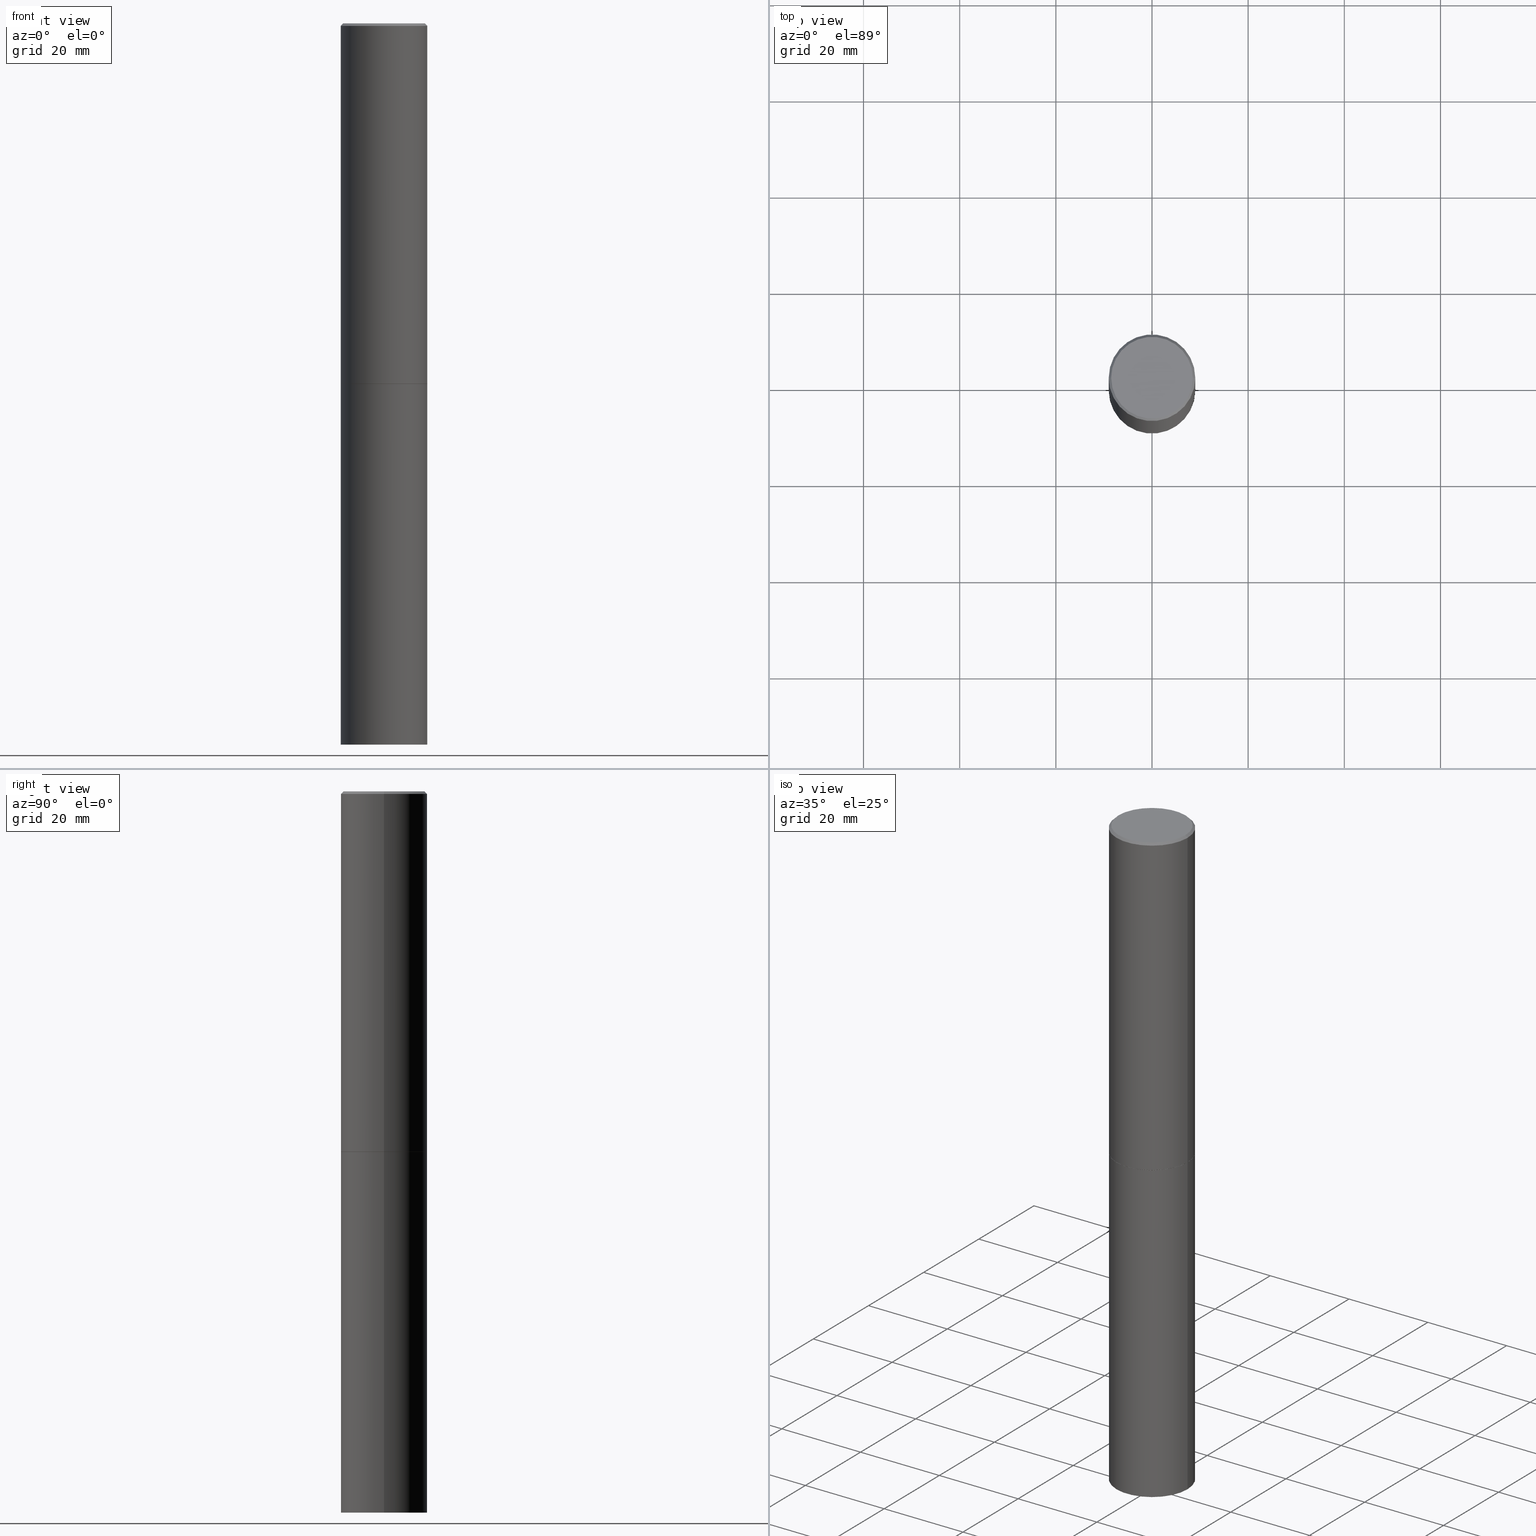
[diagram: canonical four-view strip — front | top / right | iso, engineering-drawing reading convention]
A machine part, canonical four-view strip (front | top / right | iso — engineering-drawing reading convention). The complete STEP part file that produces these views, byte-faithful:
ISO-10303-21;
HEADER;
FILE_DESCRIPTION (( 'STEP AP203' ),
    '1' );
FILE_NAME ('43175.STEP',
    '2024-02-28T04:11:20',
    ( '' ),
    ( '' ),
    'SwSTEP 2.0',
    'SolidWorks 2023',
    '' );
FILE_SCHEMA (( 'CONFIG_CONTROL_DESIGN' ));
ENDSEC;

DATA;
#1 = DIRECTION ( 'NONE',  ( -2.445468806185136597E-29, 3.491481338843145583E-15, 1.000000000000000000 ) ) ;
#2 = ADVANCED_FACE ( 'NONE', ( #82 ), #120, .T. ) ;
#3 = EDGE_LOOP ( 'NONE', ( #261, #243, #169, #320 ) ) ;
#4 = CC_DESIGN_APPROVAL ( #109, ( #158 ) ) ;
#5 = CARTESIAN_POINT ( 'NONE',  ( 0.3543499999999996652, -2.500847092287203323E-15, -0.02000000000000008021 ) ) ;
#6 = FACE_OUTER_BOUND ( 'NONE', #159, .T. ) ;
#7 = VERTEX_POINT ( 'NONE', #331 ) ;
#8 = DIRECTION ( 'NONE',  ( 1.000000000000000000, -6.982962677686267499E-15, 0.000000000000000000 ) ) ;
#9 = ADVANCED_FACE ( 'NONE', ( #80 ), #299, .T. ) ;
#10 = CARTESIAN_POINT ( 'NONE',  ( 0.3543499999999999983, -2.474412824838128694E-15, 1.727873240503289749E-29 ) ) ;
#11 = APPROVAL ( #171, 'UNSPECIFIED' ) ;
#12 = CC_DESIGN_APPROVAL ( #161, ( #136 ) ) ;
#13 = LINE ( 'NONE', #68, #166 ) ;
#14 = VERTEX_POINT ( 'NONE', #306 ) ;
#15 = ORIENTED_EDGE ( 'NONE', *, *, #319, .T. ) ;
#16 = DIRECTION ( 'NONE',  ( -2.445468806185136597E-29, 3.491481338843145583E-15, 1.000000000000000000 ) ) ;
#17 =( NAMED_UNIT ( * ) PLANE_ANGLE_UNIT ( ) SI_UNIT ( $, .RADIAN. ) );
#18 = ORIENTED_EDGE ( 'NONE', *, *, #172, .T. ) ;
#19 = APPROVAL_ROLE ( '' ) ;
#20 = CARTESIAN_POINT ( 'NONE',  ( -0.3543499999999999983, -1.294631181370425968E-14, -5.905499999999999972 ) ) ;
#21 = CC_DESIGN_DATE_AND_TIME_ASSIGNMENT ( #95, #311, ( #158 ) ) ;
#22 = CARTESIAN_POINT ( 'NONE',  ( 2.474412824838272661E-15, 0.3543499999999794037, -5.905500000000000860 ) ) ;
#23 = DIRECTION ( 'NONE',  ( 1.000000000000000000, -6.982962677686265922E-15, 4.876176775795935793E-29 ) ) ;
#24 = PERSON_AND_ORGANIZATION ( #253, #359 ) ;
#25 = CC_DESIGN_PERSON_AND_ORGANIZATION_ASSIGNMENT ( #227, #283, ( #136 ) ) ;
#26 = FACE_OUTER_BOUND ( 'NONE', #130, .T. ) ;
#27 = AXIS2_PLACEMENT_3D ( 'NONE', #98, #90, #198 ) ;
#28 = COORDINATED_UNIVERSAL_TIME_OFFSET ( 5, 0, .BEHIND. ) ;
#29 = ADVANCED_FACE ( 'NONE', ( #247 ), #51, .T. ) ;
#30 = PERSON_AND_ORGANIZATION ( #253, #359 ) ;
#31 = AXIS2_PLACEMENT_3D ( 'NONE', #237, #297, #323 ) ;
#32 = DIRECTION ( 'NONE',  ( -2.445468806185136597E-29, 3.491481338843145583E-15, 1.000000000000000000 ) ) ;
#33 = ORIENTED_EDGE ( 'NONE', *, *, #338, .F. ) ;
#34 = COORDINATED_UNIVERSAL_TIME_OFFSET ( 5, 0, .BEHIND. ) ;
#35 = EDGE_LOOP ( 'NONE', ( #33, #150, #193, #205 ) ) ;
#36 = LINE ( 'NONE', #5, #70 ) ;
#37 = DIRECTION ( 'NONE',  ( 1.000000000000000000, -6.982962677686266711E-15, 0.000000000000000000 ) ) ;
#38 = CC_DESIGN_PERSON_AND_ORGANIZATION_ASSIGNMENT ( #251, #216, ( #158 ) ) ;
#39 = DIRECTION ( 'NONE',  ( 1.000000000000000000, -6.982962677686267499E-15, 0.000000000000000000 ) ) ;
#40 = ORIENTED_EDGE ( 'NONE', *, *, #284, .F. ) ;
#41 = CC_DESIGN_PERSON_AND_ORGANIZATION_ASSIGNMENT ( #176, #287, ( #275 ) ) ;
#42 = APPROVAL_DATE_TIME ( #97, #11 ) ;
#43 = CARTESIAN_POINT ( 'NONE',  ( 7.220735744022853640E-29, -1.030929694920215659E-14, -2.952700000000000546 ) ) ;
#44 = ORIENTED_EDGE ( 'NONE', *, *, #172, .F. ) ;
#45 = VECTOR ( 'NONE', #252, 39.37007874015748143 ) ;
#46 = APPROVAL_PERSON_ORGANIZATION ( #258, #11, #282 ) ;
#47 = FACE_OUTER_BOUND ( 'NONE', #132, .T. ) ;
#48 = VERTEX_POINT ( 'NONE', #271 ) ;
#49 = DIRECTION ( 'NONE',  ( 2.445468806185136597E-29, -3.491481338843145583E-15, -1.000000000000000000 ) ) ;
#50 = EDGE_LOOP ( 'NONE', ( #72, #350 ) ) ;
#51 = CONICAL_SURFACE ( 'NONE', #160, 0.3543499999999996652, 0.7853981633974459475 ) ;
#52 = APPLICATION_PROTOCOL_DEFINITION ( 'international standard', 'config_control_design', 1994, #276 ) ;
#53 = DIRECTION ( 'NONE',  ( -2.445468806185136597E-29, 3.491481338843145583E-15, 1.000000000000000000 ) ) ;
#54 = EDGE_CURVE ( 'NONE', #295, #341, #83, .T. ) ;
#55 = DIRECTION ( 'NONE',  ( 2.438088387897960049E-29, -3.491481338843145188E-15, -1.000000000000000000 ) ) ;
#56 = LINE ( 'NONE', #170, #153 ) ;
#57 = PRODUCT_RELATED_PRODUCT_CATEGORY ( 'detail', '', ( #229 ) ) ;
#58 = MECHANICAL_CONTEXT ( 'NONE', #259, 'mechanical' ) ;
#59 = CIRCLE ( 'NONE', #31, 0.3543499999999999983 ) ;
#60 = FACE_OUTER_BOUND ( 'NONE', #149, .T. ) ;
#61 = CC_DESIGN_PERSON_AND_ORGANIZATION_ASSIGNMENT ( #30, #340, ( #136 ) ) ;
#62 = CARTESIAN_POINT ( 'NONE',  ( 0.000000000000000000, 0.000000000000000000, 0.000000000000000000 ) ) ;
#63 = SECURITY_CLASSIFICATION_LEVEL ( 'unclassified' ) ;
#64 = CARTESIAN_POINT ( 'NONE',  ( 2.334753571284400520E-15, 0.3343499999999996475, -1.165242529397154385E-15 ) ) ;
#65 = ORIENTED_EDGE ( 'NONE', *, *, #362, .T. ) ;
#66 = PLANE ( 'NONE',  #174 ) ;
#67 = EDGE_CURVE ( 'NONE', #14, #349, #203, .T. ) ;
#68 = CARTESIAN_POINT ( 'NONE',  ( 0.3543499999999998873, -2.474412824838127905E-15, 1.727873240503289188E-29 ) ) ;
#69 = VERTEX_POINT ( 'NONE', #20 ) ;
#70 = VECTOR ( 'NONE', #124, 39.37007874015748143 ) ;
#71 = CARTESIAN_POINT ( 'NONE',  ( 4.890937612370293302E-31, -6.982962677686318726E-17, -0.02000000000000008021 ) ) ;
#72 = ORIENTED_EDGE ( 'NONE', *, *, #219, .F. ) ;
#73 = DIRECTION ( 'NONE',  ( 1.000000000000000000, -6.982962677686266711E-15, 4.876176775795935793E-29 ) ) ;
#74 = ORIENTED_EDGE ( 'NONE', *, *, #265, .T. ) ;
#75 = EDGE_CURVE ( 'NONE', #349, #288, #108, .T. ) ;
#76 = VECTOR ( 'NONE', #196, 39.37007874015748143 ) ;
#77 = AXIS2_PLACEMENT_3D ( 'NONE', #358, #116, #343 ) ;
#78 = CARTESIAN_POINT ( 'NONE',  ( 0.3533499999999999974, -1.277672681136259888E-14, -2.952700000000000546 ) ) ;
#79 = VERTEX_POINT ( 'NONE', #354 ) ;
#80 = FACE_OUTER_BOUND ( 'NONE', #215, .T. ) ;
#81 = EDGE_CURVE ( 'NONE', #295, #104, #220, .T. ) ;
#82 = FACE_OUTER_BOUND ( 'NONE', #186, .T. ) ;
#83 = CIRCLE ( 'NONE', #274, 0.3343499999999996475 ) ;
#84 = CALENDAR_DATE ( 2024, 27, 2 ) ;
#85 = AXIS2_PLACEMENT_3D ( 'NONE', #168, #334, #249 ) ;
#86 = CARTESIAN_POINT ( 'NONE',  ( -0.3543499999999999983, 2.517808184165914997E-15, -1.743024649231826066E-29 ) ) ;
#87 = CC_DESIGN_DATE_AND_TIME_ASSIGNMENT ( #262, #89, ( #275 ) ) ;
#88 = CARTESIAN_POINT ( 'NONE',  ( 0.000000000000000000, 0.000000000000000000, 0.000000000000000000 ) ) ;
#89 = DATE_TIME_ROLE ( 'classification_date' ) ;
#90 = DIRECTION ( 'NONE',  ( -2.445468806185136597E-29, 3.491481338843145583E-15, 1.000000000000000000 ) ) ;
#91 = ADVANCED_FACE ( 'NONE', ( #268 ), #225, .F. ) ;
#92 = DESIGN_CONTEXT ( 'detailed design', #276, 'design' ) ;
#93 = CONICAL_SURFACE ( 'NONE', #291, 0.3533499999999999974, 0.7853981633972775267 ) ;
#94 = FACE_OUTER_BOUND ( 'NONE', #183, .T. ) ;
#95 = DATE_AND_TIME ( #328, #154 ) ;
#96 =( GEOMETRIC_REPRESENTATION_CONTEXT ( 3 ) GLOBAL_UNCERTAINTY_ASSIGNED_CONTEXT ( ( #117 ) ) GLOBAL_UNIT_ASSIGNED_CONTEXT ( ( #114, #17, #137 ) ) REPRESENTATION_CONTEXT ( 'NONE', 'WORKASPACE' ) );
#97 = DATE_AND_TIME ( #143, #167 ) ;
#98 = CARTESIAN_POINT ( 'NONE',  ( 7.220735744022852519E-29, -1.030929694920215502E-14, -2.952700000000000102 ) ) ;
#99 = ADVANCED_FACE ( 'NONE', ( #361 ), #312, .F. ) ;
#100 = CARTESIAN_POINT ( 'NONE',  ( -0.3343499999999996475, 2.369668384672832169E-15, 4.268512490083961526E-18 ) ) ;
#101 = CIRCLE ( 'NONE', #307, 0.3543499999999996652 ) ;
#102 = ORIENTED_EDGE ( 'NONE', *, *, #362, .F. ) ;
#103 = DIRECTION ( 'NONE',  ( -2.445468806185136597E-29, 3.491481338843145583E-15, 1.000000000000000000 ) ) ;
#104 = VERTEX_POINT ( 'NONE', #151 ) ;
#105 = CARTESIAN_POINT ( 'NONE',  ( 7.220735744022853640E-29, -1.030929694920215659E-14, -2.952700000000000546 ) ) ;
#106 = AXIS2_PLACEMENT_3D ( 'NONE', #335, #280, #23 ) ;
#107 =( LENGTH_UNIT ( ) NAMED_UNIT ( * ) SI_UNIT ( $, .METRE. ) );
#108 = LINE ( 'NONE', #140, #45 ) ;
#109 = APPROVAL ( #277, 'UNSPECIFIED' ) ;
#110 = DIRECTION ( 'NONE',  ( 1.000000000000000000, 0.000000000000000000, 0.000000000000000000 ) ) ;
#111 = DIRECTION ( 'NONE',  ( -1.000000000000000000, 6.982962677686266711E-15, 0.000000000000000000 ) ) ;
#112 = DIRECTION ( 'NONE',  ( -0.7071067811865459074, 2.468850131082239706E-15, -0.7071067811865492381 ) ) ;
#113 = CLOSED_SHELL ( 'NONE', ( #2, #9, #29, #296, #224, #245, #91, #99 ) ) ;
#114 =( CONVERSION_BASED_UNIT ( 'INCH', #190 ) LENGTH_UNIT ( ) NAMED_UNIT ( #180 ) );
#115 = AXIS2_PLACEMENT_3D ( 'NONE', #141, #352, #254 ) ;
#116 = DIRECTION ( 'NONE',  ( -2.445468806185136597E-29, 3.491481338843145583E-15, 1.000000000000000000 ) ) ;
#117 = UNCERTAINTY_MEASURE_WITH_UNIT (LENGTH_MEASURE( 1.000000000000000082E-05 ), #114, 'distance_accuracy_value', 'NONE');
#118 = CARTESIAN_POINT ( 'NONE',  ( 7.220735744022852519E-29, -1.030929694920215502E-14, -2.952700000000000102 ) ) ;
#119 = ADVANCED_FACE ( 'NONE', ( #26 ), #197, .T. ) ;
#120 = CONICAL_SURFACE ( 'NONE', #147, 0.3533499999999999974, 0.7853981633972775267 ) ;
#121 = LOCAL_TIME ( 23, 11, 20.00000000000000000, #122 ) ;
#122 = COORDINATED_UNIVERSAL_TIME_OFFSET ( 5, 0, .BEHIND. ) ;
#123 = ADVANCED_BREP_SHAPE_REPRESENTATION ( '43175', ( #269, #144, #182 ), #96 ) ;
#124 = DIRECTION ( 'NONE',  ( 0.7071067811865459074, -7.319954787623251312E-15, -0.7071067811865492381 ) ) ;
#125 = ORIENTED_EDGE ( 'NONE', *, *, #142, .T. ) ;
#126 = EDGE_CURVE ( 'NONE', #48, #79, #226, .T. ) ;
#127 = FACE_OUTER_BOUND ( 'NONE', #3, .T. ) ;
#128 = DIRECTION ( 'NONE',  ( -2.445468806185136877E-29, 3.491481338843145188E-15, 1.000000000000000000 ) ) ;
#129 = AXIS2_PLACEMENT_3D ( 'NONE', #43, #293, #39 ) ;
#130 = EDGE_LOOP ( 'NONE', ( #44, #125, #15, #188 ) ) ;
#131 = CARTESIAN_POINT ( 'NONE',  ( 4.890937612370293302E-31, -6.982962677686318726E-17, -0.02000000000000008021 ) ) ;
#132 = EDGE_LOOP ( 'NONE', ( #329, #366, #74, #222 ) ) ;
#133 = ORIENTED_EDGE ( 'NONE', *, *, #310, .F. ) ;
#134 = EDGE_CURVE ( 'NONE', #79, #48, #189, .T. ) ;
#135 = CIRCLE ( 'NONE', #339, 0.3543499999999999983 ) ;
#136 = PRODUCT_DEFINITION_FORMATION_WITH_SPECIFIED_SOURCE ( 'ANY', '', #229, .NOT_KNOWN. ) ;
#137 =( NAMED_UNIT ( * ) SI_UNIT ( $, .STERADIAN. ) SOLID_ANGLE_UNIT ( ) );
#138 = CARTESIAN_POINT ( 'NONE',  ( 0.000000000000000000, 0.000000000000000000, 0.000000000000000000 ) ) ;
#139 = DATE_AND_TIME ( #84, #292 ) ;
#140 = CARTESIAN_POINT ( 'NONE',  ( 0.3533499999999999974, -1.277672681136259888E-14, -2.952700000000000546 ) ) ;
#141 = CARTESIAN_POINT ( 'NONE',  ( 7.218290275216666916E-29, -1.030580546786331359E-14, -2.951700000000000212 ) ) ;
#142 = EDGE_CURVE ( 'NONE', #69, #191, #218, .T. ) ;
#143 = CALENDAR_DATE ( 2024, 27, 2 ) ;
#144 = MANIFOLD_SOLID_BREP ( 'Body-Move/Copy2[2]', #113 ) ;
#145 = ADVANCED_FACE ( 'NONE', ( #60 ), #206, .F. ) ;
#146 = CALENDAR_DATE ( 2024, 27, 2 ) ;
#147 = AXIS2_PLACEMENT_3D ( 'NONE', #105, #327, #194 ) ;
#148 = APPROVAL_STATUS ( 'not_yet_approved' ) ;
#149 = EDGE_LOOP ( 'NONE', ( #235, #317 ) ) ;
#150 = ORIENTED_EDGE ( 'NONE', *, *, #152, .T. ) ;
#151 = CARTESIAN_POINT ( 'NONE',  ( -0.3543499999999996652, 2.404583198061263029E-15, -0.02000000000000008021 ) ) ;
#152 = EDGE_CURVE ( 'NONE', #341, #242, #36, .T. ) ;
#153 = VECTOR ( 'NONE', #257, 39.37007874015748143 ) ;
#154 = LOCAL_TIME ( 23, 11, 20.00000000000000000, #308 ) ;
#155 = CARTESIAN_POINT ( 'NONE',  ( 0.3543499999999996652, -2.500847092287203323E-15, -0.02000000000000008021 ) ) ;
#156 = LINE ( 'NONE', #10, #336 ) ;
#157 = ORIENTED_EDGE ( 'NONE', *, *, #54, .T. ) ;
#158 = PRODUCT_DEFINITION ( 'UNKNOWN', '', #136, #92 ) ;
#159 = EDGE_LOOP ( 'NONE', ( #102, #232, #207, #40 ) ) ;
#160 = AXIS2_PLACEMENT_3D ( 'NONE', #246, #49, #111 ) ;
#161 = APPROVAL ( #148, 'UNSPECIFIED' ) ;
#162 = ORIENTED_EDGE ( 'NONE', *, *, #303, .F. ) ;
#163 = CARTESIAN_POINT ( 'NONE',  ( 7.220735744022853640E-29, -1.030929694920215659E-14, -2.952700000000000546 ) ) ;
#164 = DIRECTION ( 'NONE',  ( -1.000000000000000000, 6.982962677686265922E-15, -4.876176775795935793E-29 ) ) ;
#165 = ORIENTED_EDGE ( 'NONE', *, *, #134, .F. ) ;
#166 = VECTOR ( 'NONE', #294, 39.37007874015748143 ) ;
#167 = LOCAL_TIME ( 23, 11, 20.00000000000000000, #28 ) ;
#168 = CARTESIAN_POINT ( 'NONE',  ( 4.890937612370293302E-31, -6.982962677686318726E-17, -0.02000000000000008021 ) ) ;
#169 = ORIENTED_EDGE ( 'NONE', *, *, #81, .T. ) ;
#170 = CARTESIAN_POINT ( 'NONE',  ( -0.3543499999999998873, 2.517808184165914208E-15, -1.743024649231825225E-29 ) ) ;
#171 = APPROVAL_STATUS ( 'not_yet_approved' ) ;
#172 = EDGE_CURVE ( 'NONE', #69, #48, #236, .T. ) ;
#173 = APPROVAL_ROLE ( '' ) ;
#174 = AXIS2_PLACEMENT_3D ( 'NONE', #22, #55, #164 ) ;
#175 = CC_DESIGN_APPROVAL ( #11, ( #275 ) ) ;
#176 = PERSON_AND_ORGANIZATION ( #253, #359 ) ;
#177 = EDGE_CURVE ( 'NONE', #7, #104, #56, .T. ) ;
#178 = SHAPE_DEFINITION_REPRESENTATION ( #363, #123 ) ;
#179 = CARTESIAN_POINT ( 'NONE',  ( 7.218290275216666916E-29, -1.030580546786331359E-14, -2.951700000000000212 ) ) ;
#180 = DIMENSIONAL_EXPONENTS ( 1.000000000000000000, 0.000000000000000000, 0.000000000000000000, 0.000000000000000000, 0.000000000000000000, 0.000000000000000000, 0.000000000000000000 ) ;
#181 = CLOSED_SHELL ( 'NONE', ( #200, #330, #145, #119 ) ) ;
#182 = AXIS2_PLACEMENT_3D ( 'NONE', #88, #300, #110 ) ;
#183 = EDGE_LOOP ( 'NONE', ( #346, #18, #165, #185 ) ) ;
#184 = DIRECTION ( 'NONE',  ( -2.445468806185136597E-29, 3.491481338843145583E-15, 1.000000000000000000 ) ) ;
#185 = ORIENTED_EDGE ( 'NONE', *, *, #319, .F. ) ;
#186 = EDGE_LOOP ( 'NONE', ( #324, #65, #273, #217 ) ) ;
#187 = DIRECTION ( 'NONE',  ( -1.000000000000000000, 6.982962677686266711E-15, 0.000000000000000000 ) ) ;
#188 = ORIENTED_EDGE ( 'NONE', *, *, #126, .F. ) ;
#189 = CIRCLE ( 'NONE', #27, 0.3543499999999999983 ) ;
#190 = LENGTH_MEASURE_WITH_UNIT ( LENGTH_MEASURE( 0.02539999999999999897 ), #107 );
#191 = VERTEX_POINT ( 'NONE', #221 ) ;
#192 = DIRECTION ( 'NONE',  ( 1.000000000000000000, -6.982962677686266711E-15, 4.876061227832602160E-29 ) ) ;
#193 = ORIENTED_EDGE ( 'NONE', *, *, #303, .T. ) ;
#194 = DIRECTION ( 'NONE',  ( 1.000000000000000000, -6.982962677686267499E-15, 0.000000000000000000 ) ) ;
#195 = AXIS2_PLACEMENT_3D ( 'NONE', #118, #255, #228 ) ;
#196 = DIRECTION ( 'NONE',  ( -2.445468806185136877E-29, 3.491481338843145188E-15, 1.000000000000000000 ) ) ;
#197 = CYLINDRICAL_SURFACE ( 'NONE', #313, 0.3543499999999999983 ) ;
#198 = DIRECTION ( 'NONE',  ( 1.000000000000000000, -6.982962677686265922E-15, 0.000000000000000000 ) ) ;
#199 = AXIS2_PLACEMENT_3D ( 'NONE', #223, #279, #192 ) ;
#200 = ADVANCED_FACE ( 'NONE', ( #94 ), #201, .T. ) ;
#201 = CYLINDRICAL_SURFACE ( 'NONE', #285, 0.3543499999999999983 ) ;
#202 = PERSON_AND_ORGANIZATION ( #253, #359 ) ;
#203 = CIRCLE ( 'NONE', #248, 0.3533499999999999974 ) ;
#204 = CIRCLE ( 'NONE', #199, 0.3343499999999996475 ) ;
#205 = ORIENTED_EDGE ( 'NONE', *, *, #81, .F. ) ;
#206 = PLANE ( 'NONE',  #234 ) ;
#207 = ORIENTED_EDGE ( 'NONE', *, *, #75, .T. ) ;
#208 = DIRECTION ( 'NONE',  ( 2.445468806185136597E-29, -3.491481338843145583E-15, -1.000000000000000000 ) ) ;
#209 = CONICAL_SURFACE ( 'NONE', #260, 0.3543499999999996652, 0.7853981633974459475 ) ;
#210 = CIRCLE ( 'NONE', #115, 0.3543499999999999983 ) ;
#211 = ORIENTED_EDGE ( 'NONE', *, *, #265, .F. ) ;
#212 = CYLINDRICAL_SURFACE ( 'NONE', #321, 0.3543499999999998873 ) ;
#213 = ORIENTED_EDGE ( 'NONE', *, *, #177, .T. ) ;
#214 = DIRECTION ( 'NONE',  ( 1.000000000000000000, -6.982962677686265922E-15, 0.000000000000000000 ) ) ;
#215 = EDGE_LOOP ( 'NONE', ( #238, #213, #162, #211 ) ) ;
#216 = PERSON_AND_ORGANIZATION_ROLE ( 'creator' ) ;
#217 = ORIENTED_EDGE ( 'NONE', *, *, #75, .F. ) ;
#218 = CIRCLE ( 'NONE', #77, 0.3543499999999999983 ) ;
#219 = EDGE_CURVE ( 'NONE', #191, #69, #59, .T. ) ;
#220 = LINE ( 'NONE', #357, #298 ) ;
#221 = CARTESIAN_POINT ( 'NONE',  ( 0.3543499999999999983, -2.309335587137632500E-14, -5.905499999999999972 ) ) ;
#222 = ORIENTED_EDGE ( 'NONE', *, *, #348, .F. ) ;
#223 = CARTESIAN_POINT ( 'NONE',  ( -1.043851414335219820E-46, 1.490343170380447200E-32, 4.268512490100411279E-18 ) ) ;
#224 = ADVANCED_FACE ( 'NONE', ( #47 ), #212, .T. ) ;
#225 = PLANE ( 'NONE',  #106 ) ;
#226 = CIRCLE ( 'NONE', #195, 0.3543499999999999983 ) ;
#227 = PERSON_AND_ORGANIZATION ( #253, #359 ) ;
#228 = DIRECTION ( 'NONE',  ( 1.000000000000000000, -6.982962677686265922E-15, 0.000000000000000000 ) ) ;
#229 = PRODUCT ( '43175', '43175', '', ( #58 ) ) ;
#230 = APPROVAL_DATE_TIME ( #316, #161 ) ;
#231 = DIRECTION ( 'NONE',  ( 2.438088387897960049E-29, -3.491481338843145188E-15, -1.000000000000000000 ) ) ;
#232 = ORIENTED_EDGE ( 'NONE', *, *, #67, .T. ) ;
#233 = DIRECTION ( 'NONE',  ( 1.000000000000000000, -6.982962677686266711E-15, 4.876176775795935793E-29 ) ) ;
#234 = AXIS2_PLACEMENT_3D ( 'NONE', #365, #231, #318 ) ;
#235 = ORIENTED_EDGE ( 'NONE', *, *, #134, .T. ) ;
#236 = LINE ( 'NONE', #86, #76 ) ;
#237 = CARTESIAN_POINT ( 'NONE',  ( 1.444171603492632270E-28, -2.061894304653819197E-14, -5.905499999999999972 ) ) ;
#238 = ORIENTED_EDGE ( 'NONE', *, *, #344, .T. ) ;
#239 = CC_DESIGN_PERSON_AND_ORGANIZATION_ASSIGNMENT ( #332, #305, ( #229 ) ) ;
#240 = DIRECTION ( 'NONE',  ( -2.445468806185136597E-29, 3.491481338843145583E-15, 1.000000000000000000 ) ) ;
#241 = CIRCLE ( 'NONE', #129, 0.3533499999999999974 ) ;
#242 = VERTEX_POINT ( 'NONE', #155 ) ;
#243 = ORIENTED_EDGE ( 'NONE', *, *, #54, .F. ) ;
#244 = FACE_OUTER_BOUND ( 'NONE', #50, .T. ) ;
#245 = ADVANCED_FACE ( 'NONE', ( #6 ), #93, .T. ) ;
#246 = CARTESIAN_POINT ( 'NONE',  ( 4.890937612370293302E-31, -6.982962677686318726E-17, -0.02000000000000008021 ) ) ;
#247 = FACE_OUTER_BOUND ( 'NONE', #35, .T. ) ;
#248 = AXIS2_PLACEMENT_3D ( 'NONE', #163, #16, #278 ) ;
#249 = DIRECTION ( 'NONE',  ( 1.000000000000000000, -6.982962677686266711E-15, 0.000000000000000000 ) ) ;
#250 = DIRECTION ( 'NONE',  ( -2.445468806185136597E-29, 3.491481338843145583E-15, 1.000000000000000000 ) ) ;
#251 = PERSON_AND_ORGANIZATION ( #253, #359 ) ;
#252 = DIRECTION ( 'NONE',  ( 0.7071067811864267805, -2.468850131080992517E-15, 0.7071067811866682540 ) ) ;
#253 = PERSON ( 'UNSPECIFIED', 'UNSPECIFIED', 'UNSPECIFIED', ('UNSPECIFIED'), ('UNSPECIFIED'), ('UNSPECIFIED') ) ;
#254 = DIRECTION ( 'NONE',  ( 1.000000000000000000, -6.982962677686265922E-15, 0.000000000000000000 ) ) ;
#255 = DIRECTION ( 'NONE',  ( -2.445468806185136597E-29, 3.491481338843145583E-15, 1.000000000000000000 ) ) ;
#256 = COORDINATED_UNIVERSAL_TIME_OFFSET ( 5, 0, .BEHIND. ) ;
#257 = DIRECTION ( 'NONE',  ( -2.445468806185136877E-29, 3.491481338843145188E-15, 1.000000000000000000 ) ) ;
#258 = PERSON_AND_ORGANIZATION ( #253, #359 ) ;
#259 = APPLICATION_CONTEXT ( 'configuration controlled 3d designs of mechanical parts and assemblies' ) ;
#260 = AXIS2_PLACEMENT_3D ( 'NONE', #131, #208, #187 ) ;
#261 = ORIENTED_EDGE ( 'NONE', *, *, #152, .F. ) ;
#262 = DATE_AND_TIME ( #146, #322 ) ;
#263 = CARTESIAN_POINT ( 'NONE',  ( 0.000000000000000000, 0.000000000000000000, 0.000000000000000000 ) ) ;
#264 = DIRECTION ( 'NONE',  ( 2.438088387897960049E-29, -3.491481338843145188E-15, -1.000000000000000000 ) ) ;
#265 = EDGE_CURVE ( 'NONE', #288, #242, #13, .T. ) ;
#266 = DIRECTION ( 'NONE',  ( 1.000000000000000000, -6.982962677686266711E-15, 4.876176775795935232E-29 ) ) ;
#267 = CIRCLE ( 'NONE', #85, 0.3543499999999996652 ) ;
#268 = FACE_OUTER_BOUND ( 'NONE', #301, .T. ) ;
#269 = MANIFOLD_SOLID_BREP ( 'Body-Move/Copy2[1]', #181 ) ;
#270 = EDGE_LOOP ( 'NONE', ( #157, #286 ) ) ;
#271 = CARTESIAN_POINT ( 'NONE',  ( -0.3543499999999999983, -1.294631181370425968E-14, -2.952700000000000102 ) ) ;
#272 = LINE ( 'NONE', #302, #315 ) ;
#273 = ORIENTED_EDGE ( 'NONE', *, *, #344, .F. ) ;
#274 = AXIS2_PLACEMENT_3D ( 'NONE', #333, #53, #351 ) ;
#275 = SECURITY_CLASSIFICATION ( '', '', #63 ) ;
#276 = APPLICATION_CONTEXT ( 'configuration controlled 3d designs of mechanical parts and assemblies' ) ;
#277 = APPROVAL_STATUS ( 'not_yet_approved' ) ;
#278 = DIRECTION ( 'NONE',  ( 1.000000000000000000, -6.982962677686267499E-15, 0.000000000000000000 ) ) ;
#279 = DIRECTION ( 'NONE',  ( -2.445468806185136597E-29, 3.491481338843145583E-15, 1.000000000000000000 ) ) ;
#280 = DIRECTION ( 'NONE',  ( -2.438088387897960049E-29, 3.491481338843145188E-15, 1.000000000000000000 ) ) ;
#281 = CC_DESIGN_SECURITY_CLASSIFICATION ( #275, ( #136 ) ) ;
#282 = APPROVAL_ROLE ( '' ) ;
#283 = PERSON_AND_ORGANIZATION_ROLE ( 'creator' ) ;
#284 = EDGE_CURVE ( 'NONE', #7, #288, #135, .T. ) ;
#285 = AXIS2_PLACEMENT_3D ( 'NONE', #62, #32, #73 ) ;
#286 = ORIENTED_EDGE ( 'NONE', *, *, #338, .T. ) ;
#287 = PERSON_AND_ORGANIZATION_ROLE ( 'classification_officer' ) ;
#288 = VERTEX_POINT ( 'NONE', #326 ) ;
#289 = DIRECTION ( 'NONE',  ( -1.000000000000000000, 6.982962677686265922E-15, -4.876176775795935793E-29 ) ) ;
#290 = CARTESIAN_POINT ( 'NONE',  ( 7.220735744022853640E-29, -1.030929694920215659E-14, -2.952700000000000546 ) ) ;
#291 = AXIS2_PLACEMENT_3D ( 'NONE', #290, #345, #8 ) ;
#292 = LOCAL_TIME ( 23, 11, 20.00000000000000000, #256 ) ;
#293 = DIRECTION ( 'NONE',  ( -2.445468806185136597E-29, 3.491481338843145583E-15, 1.000000000000000000 ) ) ;
#294 = DIRECTION ( 'NONE',  ( -2.445468806185136877E-29, 3.491481338843145188E-15, 1.000000000000000000 ) ) ;
#295 = VERTEX_POINT ( 'NONE', #100 ) ;
#296 = ADVANCED_FACE ( 'NONE', ( #127 ), #209, .T. ) ;
#297 = DIRECTION ( 'NONE',  ( -2.445468806185136597E-29, 3.491481338843145583E-15, 1.000000000000000000 ) ) ;
#298 = VECTOR ( 'NONE', #112, 39.37007874015748143 ) ;
#299 = CYLINDRICAL_SURFACE ( 'NONE', #347, 0.3543499999999998873 ) ;
#300 = DIRECTION ( 'NONE',  ( 0.000000000000000000, 0.000000000000000000, 1.000000000000000000 ) ) ;
#301 = EDGE_LOOP ( 'NONE', ( #133, #304 ) ) ;
#302 = CARTESIAN_POINT ( 'NONE',  ( -0.3533499999999999974, -7.798594192393843789E-15, -2.952700000000000546 ) ) ;
#303 = EDGE_CURVE ( 'NONE', #242, #104, #101, .T. ) ;
#304 = ORIENTED_EDGE ( 'NONE', *, *, #67, .F. ) ;
#305 = PERSON_AND_ORGANIZATION_ROLE ( 'design_owner' ) ;
#306 = CARTESIAN_POINT ( 'NONE',  ( -0.3533499999999999974, -7.793295738045619809E-15, -2.952700000000000546 ) ) ;
#307 = AXIS2_PLACEMENT_3D ( 'NONE', #71, #184, #37 ) ;
#308 = COORDINATED_UNIVERSAL_TIME_OFFSET ( 5, 0, .BEHIND. ) ;
#309 = APPLICATION_PROTOCOL_DEFINITION ( 'international standard', 'config_control_design', 1994, #259 ) ;
#310 = EDGE_CURVE ( 'NONE', #349, #14, #241, .T. ) ;
#311 = DATE_TIME_ROLE ( 'creation_date' ) ;
#312 = PLANE ( 'NONE',  #342 ) ;
#313 = AXIS2_PLACEMENT_3D ( 'NONE', #263, #1, #233 ) ;
#314 = APPROVAL_PERSON_ORGANIZATION ( #24, #109, #19 ) ;
#315 = VECTOR ( 'NONE', #355, 39.37007874015748143 ) ;
#316 = DATE_AND_TIME ( #364, #121 ) ;
#317 = ORIENTED_EDGE ( 'NONE', *, *, #126, .T. ) ;
#318 = DIRECTION ( 'NONE',  ( -1.000000000000000000, 6.982962677686265922E-15, -4.876176775795935793E-29 ) ) ;
#319 = EDGE_CURVE ( 'NONE', #191, #79, #156, .T. ) ;
#320 = ORIENTED_EDGE ( 'NONE', *, *, #348, .T. ) ;
#321 = AXIS2_PLACEMENT_3D ( 'NONE', #325, #103, #266 ) ;
#322 = LOCAL_TIME ( 23, 11, 20.00000000000000000, #34 ) ;
#323 = DIRECTION ( 'NONE',  ( 1.000000000000000000, -6.982962677686271444E-15, 0.000000000000000000 ) ) ;
#324 = ORIENTED_EDGE ( 'NONE', *, *, #310, .T. ) ;
#325 = CARTESIAN_POINT ( 'NONE',  ( 0.000000000000000000, 0.000000000000000000, 0.000000000000000000 ) ) ;
#326 = CARTESIAN_POINT ( 'NONE',  ( 0.3543499999999999983, -1.278021829270144189E-14, -2.951700000000000212 ) ) ;
#327 = DIRECTION ( 'NONE',  ( -2.445468806185136597E-29, 3.491481338843145583E-15, 1.000000000000000000 ) ) ;
#328 = CALENDAR_DATE ( 2024, 27, 2 ) ;
#329 = ORIENTED_EDGE ( 'NONE', *, *, #177, .F. ) ;
#330 = ADVANCED_FACE ( 'NONE', ( #244 ), #66, .T. ) ;
#331 = CARTESIAN_POINT ( 'NONE',  ( -0.3543499999999999983, -2.670009363154171868E-15, -2.951700000000000212 ) ) ;
#332 = PERSON_AND_ORGANIZATION ( #253, #359 ) ;
#333 = CARTESIAN_POINT ( 'NONE',  ( -1.043851414335219820E-46, 1.490343170380447200E-32, 4.268512490100411279E-18 ) ) ;
#334 = DIRECTION ( 'NONE',  ( -2.445468806185136597E-29, 3.491481338843145583E-15, 1.000000000000000000 ) ) ;
#335 = CARTESIAN_POINT ( 'NONE',  ( 7.220735744022853640E-29, -1.030929694920215659E-14, -2.952700000000000546 ) ) ;
#336 = VECTOR ( 'NONE', #128, 39.37007874015748143 ) ;
#337 = CARTESIAN_POINT ( 'NONE',  ( 0.3343499999999996475, -2.397327298921056737E-15, 4.268512490116958099E-18 ) ) ;
#338 = EDGE_CURVE ( 'NONE', #341, #295, #204, .T. ) ;
#339 = AXIS2_PLACEMENT_3D ( 'NONE', #179, #240, #214 ) ;
#340 = PERSON_AND_ORGANIZATION_ROLE ( 'design_supplier' ) ;
#341 = VERTEX_POINT ( 'NONE', #337 ) ;
#342 = AXIS2_PLACEMENT_3D ( 'NONE', #64, #264, #289 ) ;
#343 = DIRECTION ( 'NONE',  ( 1.000000000000000000, -6.982962677686271444E-15, 0.000000000000000000 ) ) ;
#344 = EDGE_CURVE ( 'NONE', #288, #7, #210, .T. ) ;
#345 = DIRECTION ( 'NONE',  ( -2.445468806185136597E-29, 3.491481338843145583E-15, 1.000000000000000000 ) ) ;
#346 = ORIENTED_EDGE ( 'NONE', *, *, #219, .T. ) ;
#347 = AXIS2_PLACEMENT_3D ( 'NONE', #138, #250, #356 ) ;
#348 = EDGE_CURVE ( 'NONE', #104, #242, #267, .T. ) ;
#349 = VERTEX_POINT ( 'NONE', #78 ) ;
#350 = ORIENTED_EDGE ( 'NONE', *, *, #142, .F. ) ;
#351 = DIRECTION ( 'NONE',  ( 1.000000000000000000, -6.982962677686266711E-15, 4.876061227832602160E-29 ) ) ;
#352 = DIRECTION ( 'NONE',  ( -2.445468806185136597E-29, 3.491481338843145583E-15, 1.000000000000000000 ) ) ;
#353 = APPROVAL_PERSON_ORGANIZATION ( #202, #161, #173 ) ;
#354 = CARTESIAN_POINT ( 'NONE',  ( 0.3543499999999999983, -1.278370977404028332E-14, -2.952700000000000102 ) ) ;
#355 = DIRECTION ( 'NONE',  ( -0.7071067811864267805, 7.493145998869918709E-15, 0.7071067811866682540 ) ) ;
#356 = DIRECTION ( 'NONE',  ( 1.000000000000000000, -6.982962677686266711E-15, 4.876176775795935232E-29 ) ) ;
#357 = CARTESIAN_POINT ( 'NONE',  ( -0.3543499999999996652, 2.404583198061263029E-15, -0.02000000000000008021 ) ) ;
#358 = CARTESIAN_POINT ( 'NONE',  ( 1.444171603492632270E-28, -2.061894304653819197E-14, -5.905499999999999972 ) ) ;
#359 = ORGANIZATION ( 'UNSPECIFIED', 'UNSPECIFIED', '' ) ;
#360 = APPROVAL_DATE_TIME ( #139, #109 ) ;
#361 = FACE_OUTER_BOUND ( 'NONE', #270, .T. ) ;
#362 = EDGE_CURVE ( 'NONE', #14, #7, #272, .T. ) ;
#363 = PRODUCT_DEFINITION_SHAPE ( 'NONE', 'NONE',  #158 ) ;
#364 = CALENDAR_DATE ( 2024, 27, 2 ) ;
#365 = CARTESIAN_POINT ( 'NONE',  ( 2.474412824838200480E-15, 0.3543499999999896732, -2.952700000000000990 ) ) ;
#366 = ORIENTED_EDGE ( 'NONE', *, *, #284, .T. ) ;
ENDSEC;
END-ISO-10303-21;
